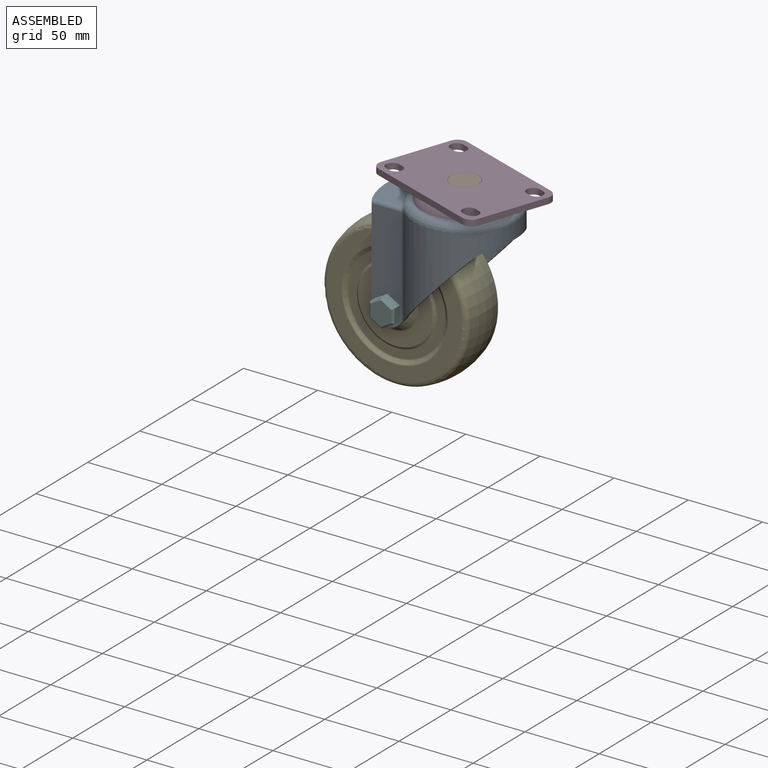
[diagram: assembled view]
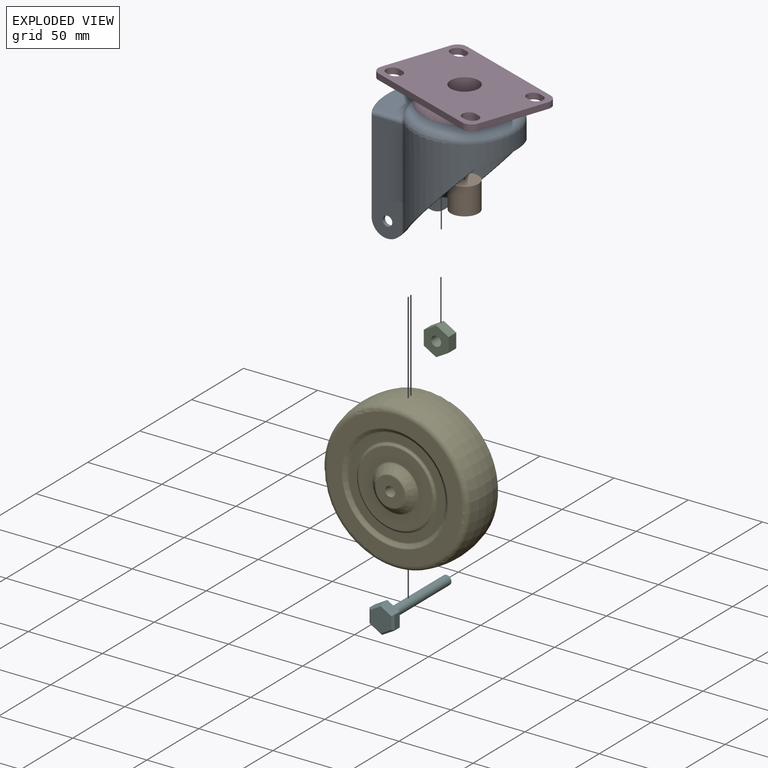
[diagram: exploded view]
GUIDED TOUR — MATED ASSEMBLY (Onshape document 0f3d1a0b3eb51d20e7fdcd5b, AutoMate assembly 0f3d1a0b3eb51d20e7fdcd5b_7a0eaa7c8137d7f687737c3b_ab210383d18e0be0b75b1769_default)

This assembly has 6 components, labeled P0..P5 below (a component is one placed occurrence of a part; the same part can appear more than once), held together by 5 mates. A mate is a constraint between two components; its type names the relative motion it leaves free:
  CYLINDRICAL — leaves both rotation about and translation along the listed axis free,
  FASTENED — locks the two components together rigidly (no relative motion),
  REVOLUTE — leaves rotation about the listed axis free (a hinge).
Axis/direction vectors are unit vectors and 'through' points are millimeter coordinates, both in the assembly's world frame.

MATES
  1. FASTENED "Fastened 2": P2 <-> P0, direction (0.000, -1.000, 0.000) through (-33.50, 5.09, -38.47) mm
  2. CYLINDRICAL "Cylindrical 1": P4 <-> P0, axis (0.000, -1.000, 0.000) through (-33.50, -39.19, -38.47) mm
  3. FASTENED "Fastened 3": P0 <-> P1, direction (0.000, 0.000, -1.000) through (2.14, -18.41, 23.25) mm
  4. REVOLUTE "Revolute 1": P3 <-> P1, axis (0.000, 0.000, 1.000) through (2.14, -18.41, 41.28) mm
  5. FASTENED "Fastened 1": P0 <-> P5, direction (0.000, -1.000, 0.000) through (-33.50, -41.90, -38.47) mm

ASSEMBLY ORDER
  1. P1 — the base component [order heuristic]
  2. P3 — core [order heuristic]
  3. P0 [order verified]
  4. P4 [order verified]
  5. P5 [order verified]
  6. P2 [order verified]
Order-tag legend:
  [order verified] — this step's position reverses a verified removal order: the component was checked to insert without passing through the ones already placed.
  [order heuristic] — the first 2 components form the assembly's core: parts whose collision-free extraction could not be verified, listed in mate-graph order.

Of the 6 components, 0 carry the full construction recipe — the FeatureScript program that regenerates the part's solid from scratch; the rest are supplied as boundary geometry only.
Each toured component is shown spotlighted twice — in the assembled view, then in the exploded view, where a leader line traces a displaced component back to its assembled socket (saturated green if recipe-attached, orange if geometry-only; every other component desaturated gray) — followed by its recipe or geometry summary and the mates that hold it.
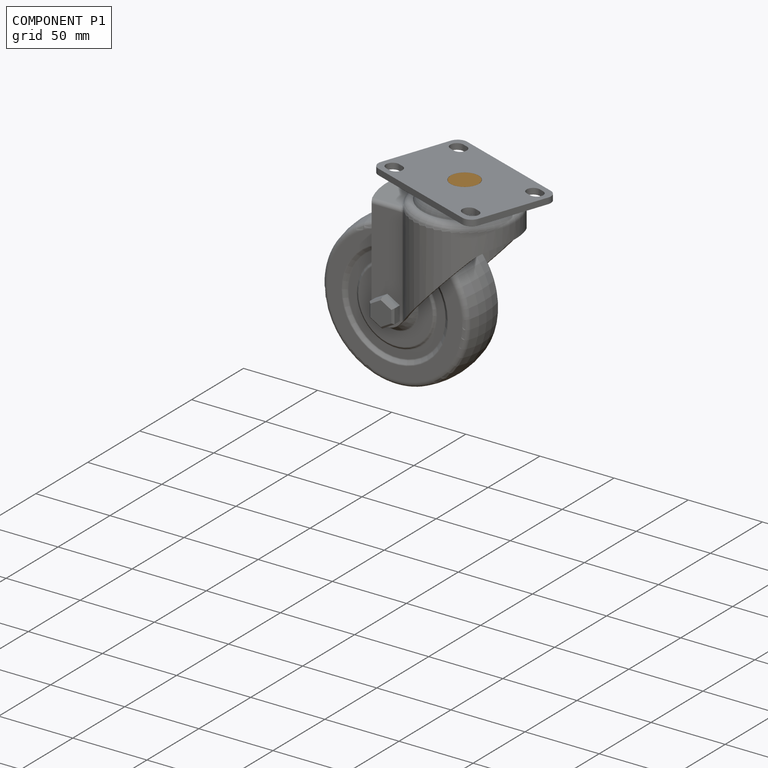
[diagram: component P1 — assembled]
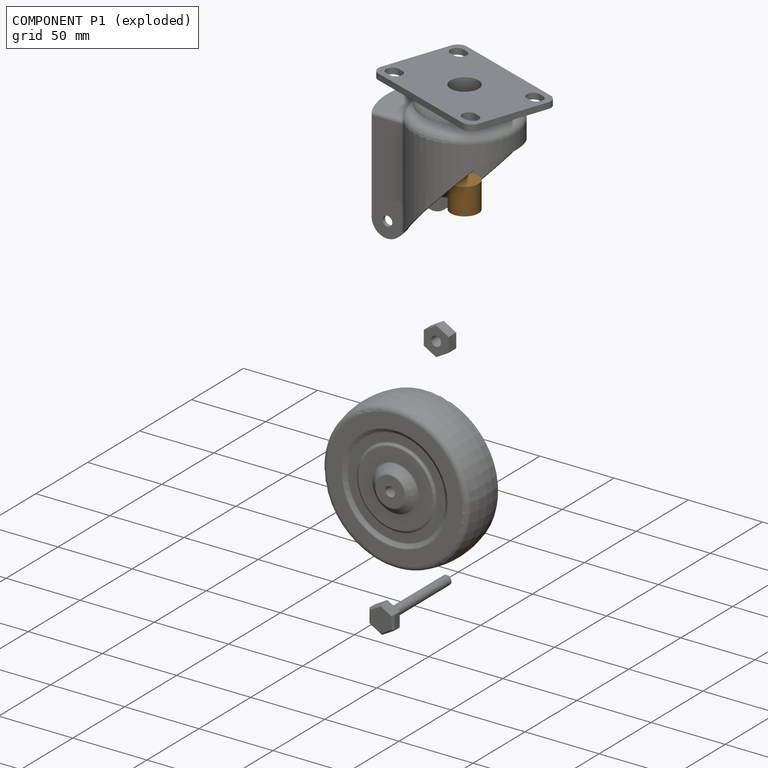
[diagram: component P1 — exploded]
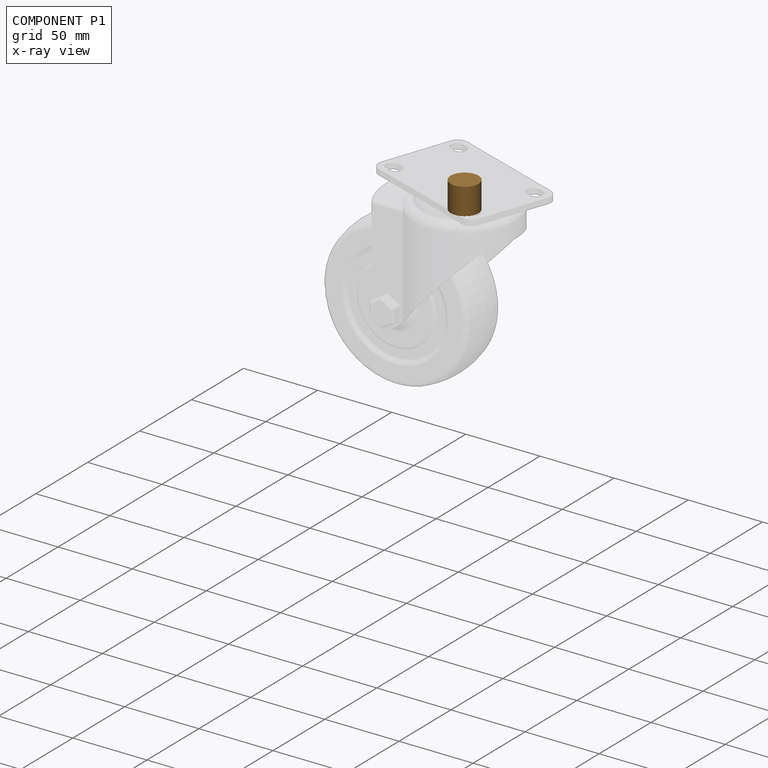
[diagram: component P1 — x-ray view]
COMPONENT P1 — geometry summary (no construction recipe available for this part):
  bounding box: 18.8 x 18.8 x 18.0 mm
  B-rep topology: 1 solid, 3 faces, 8 edges
  volume: 5004 mm^3 (79% of its bounding box)
  symmetry: 2-fold rotationally symmetric about the x axis; 2-fold rotationally symmetric about the y axis; revolution-symmetric about the z axis through its bounding-box center; mirror-symmetric across its x mid-plane, y mid-plane, z mid-plane
Held by: FASTENED mate "Fastened 3" to P0; REVOLUTE mate "Revolute 1" to P3.
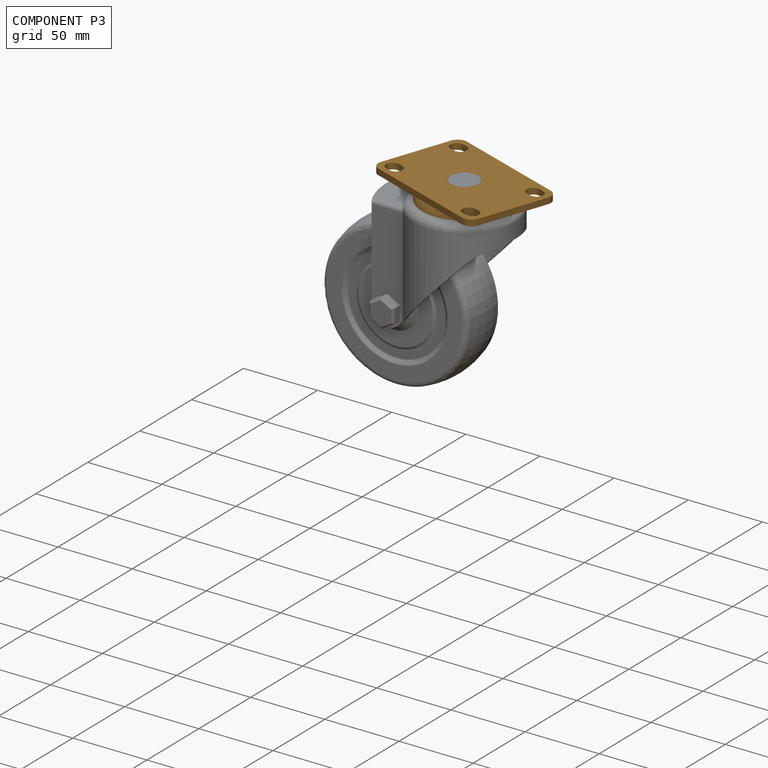
[diagram: component P3 — assembled]
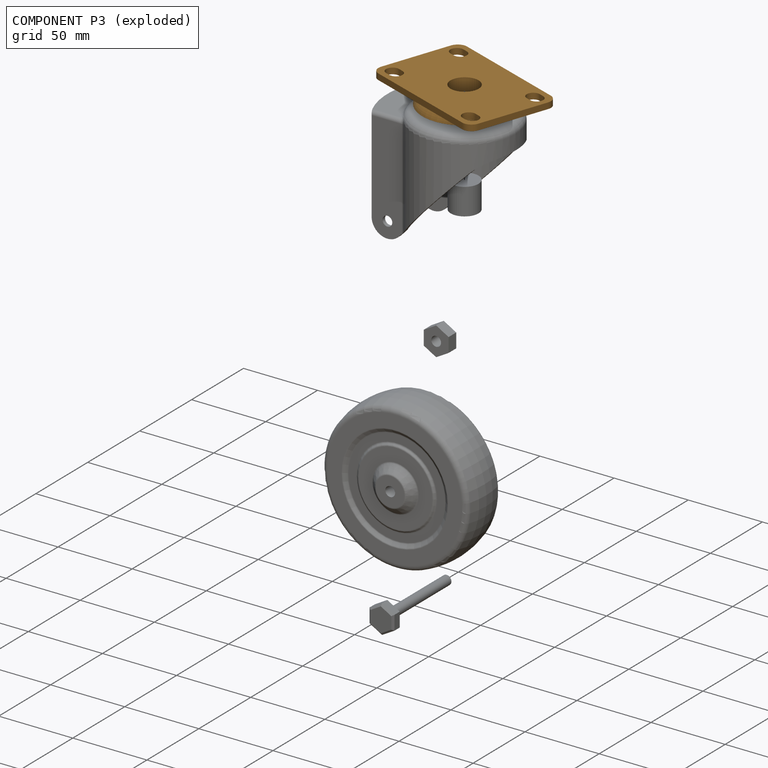
[diagram: component P3 — exploded]
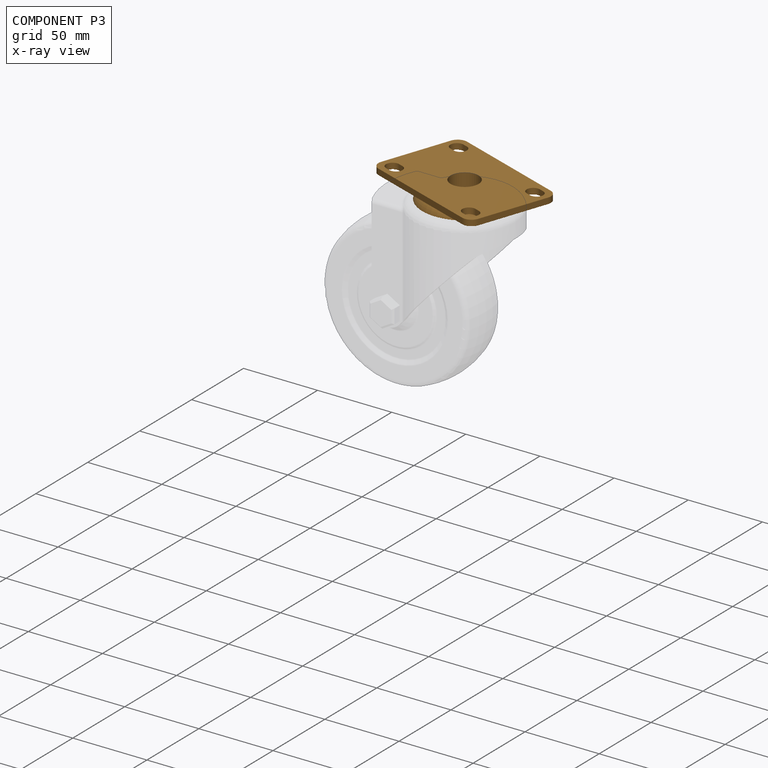
[diagram: component P3 — x-ray view]
COMPONENT P3 — geometry summary (no construction recipe available for this part):
  bounding box: 91.8 x 62.6 x 14.2 mm
  B-rep topology: 1 solid, 29 faces, 156 edges
  volume: 33906 mm^3 (41% of its bounding box)
  symmetry: 2-fold rotationally symmetric about the z axis; mirror-symmetric across its x mid-plane, y mid-plane
Held by: REVOLUTE mate "Revolute 1" to P1.
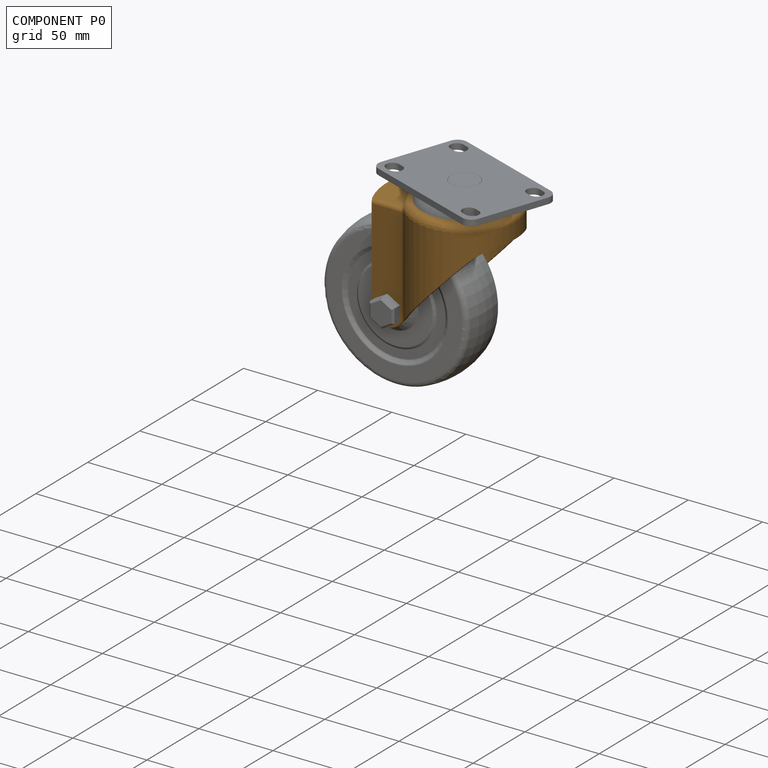
[diagram: component P0 — assembled]
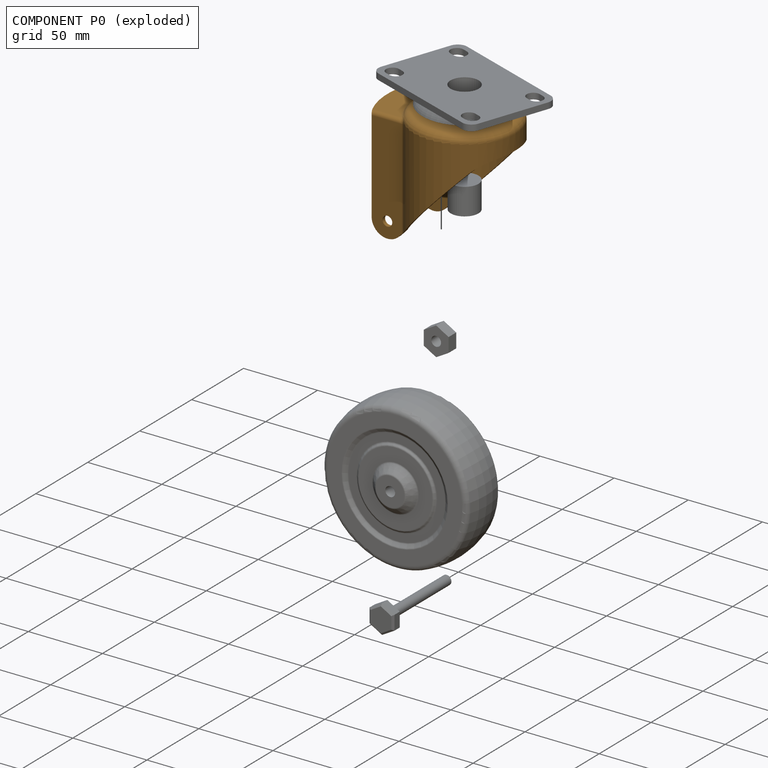
[diagram: component P0 — exploded]
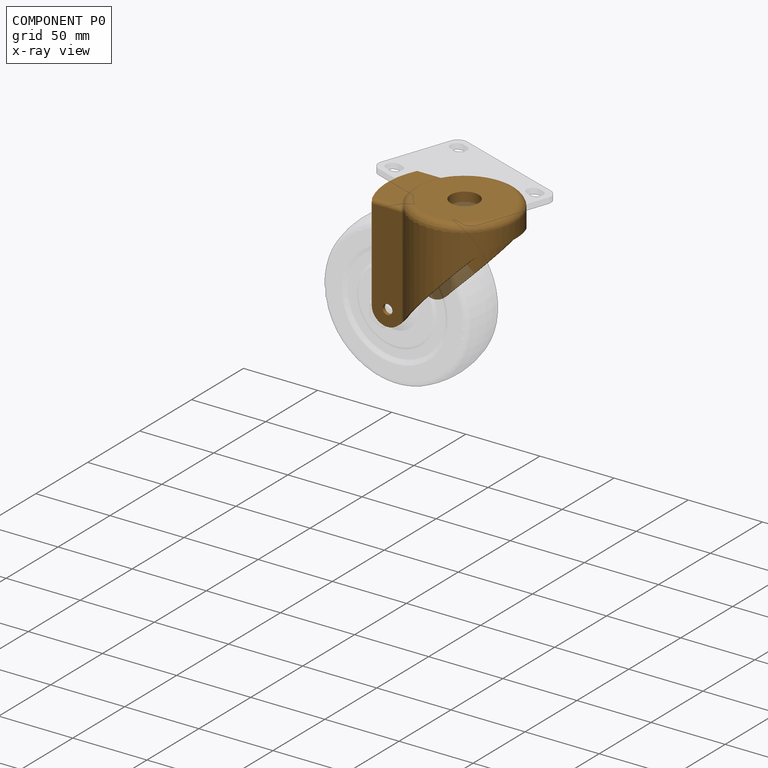
[diagram: component P0 — x-ray view]
COMPONENT P0 — geometry summary (no construction recipe available for this part):
  bounding box: 89.3 x 78.9 x 74.4 mm
  B-rep topology: 1 solid, 32 faces, 162 edges
  volume: 42675 mm^3 (8% of its bounding box)
  symmetry: mirror-symmetric across its y mid-plane
Held by: FASTENED mate "Fastened 2" to P2; CYLINDRICAL mate "Cylindrical 1" to P4; FASTENED mate "Fastened 3" to P1; FASTENED mate "Fastened 1" to P5.
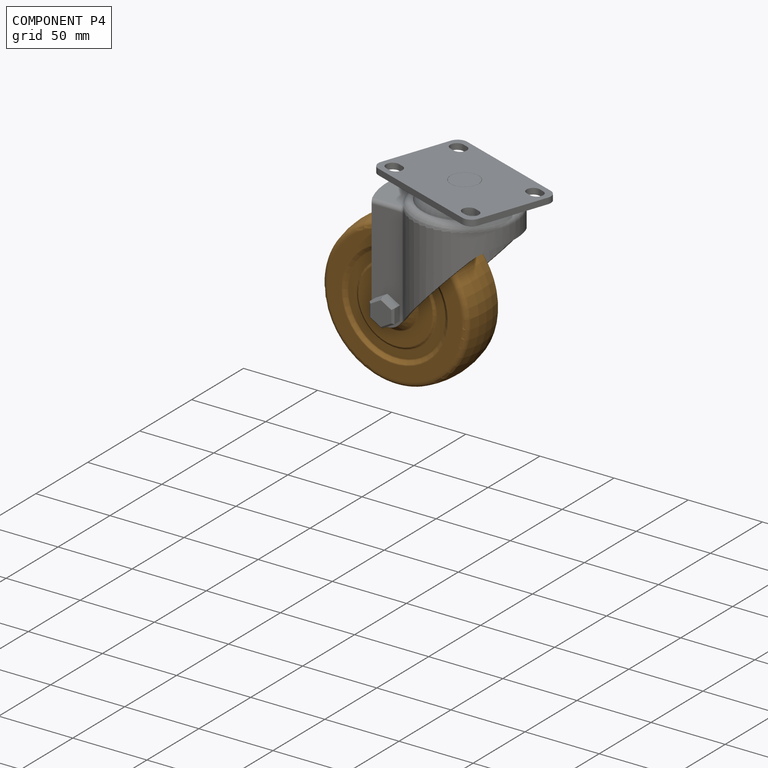
[diagram: component P4 — assembled]
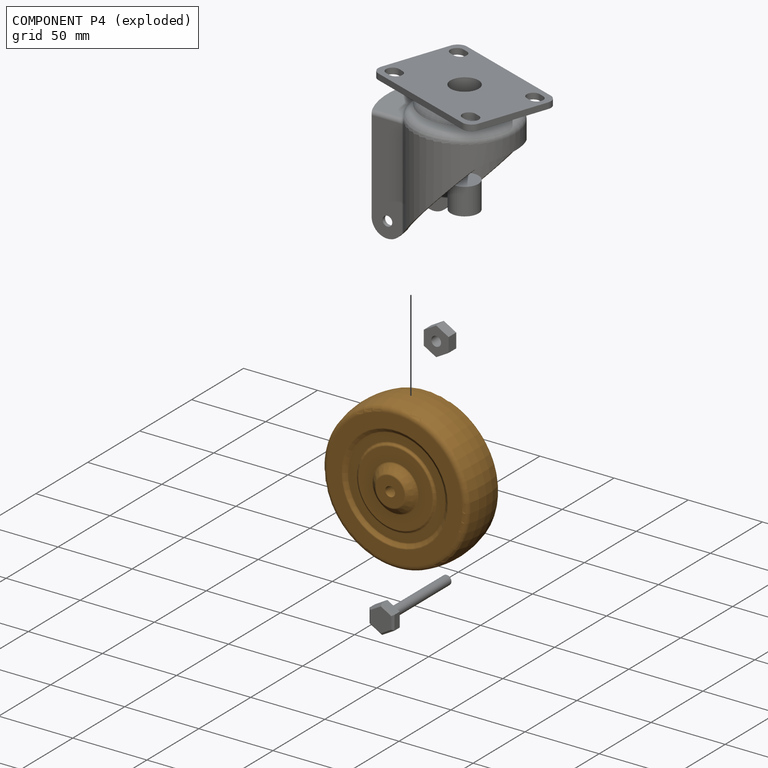
[diagram: component P4 — exploded]
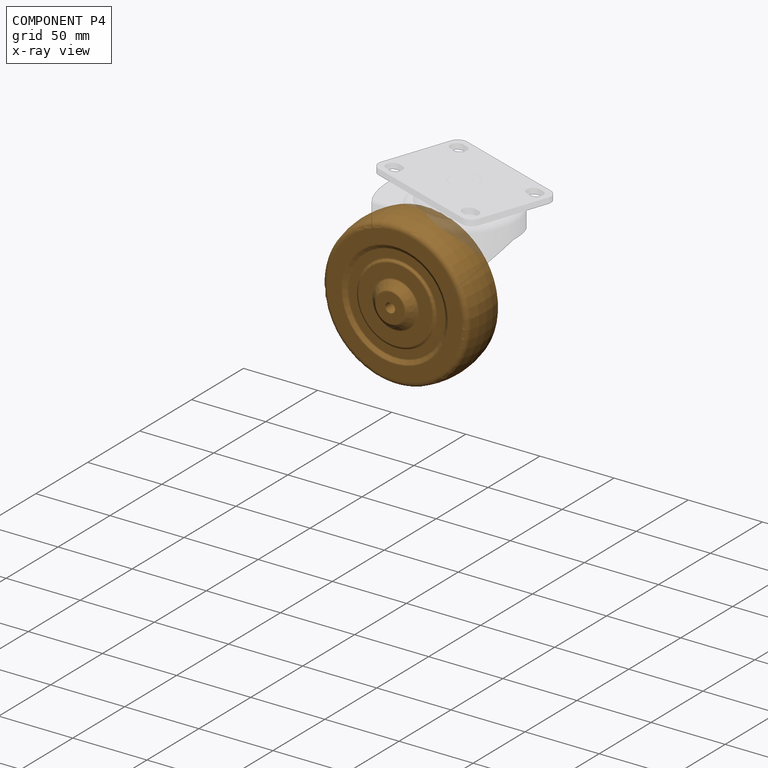
[diagram: component P4 — x-ray view]
COMPONENT P4 — geometry summary (no construction recipe available for this part):
  bounding box: 106.6 x 106.6 x 40.6 mm
  B-rep topology: 1 solid, 30 faces, 128 edges
  volume: 243257 mm^3 (53% of its bounding box)
  symmetry: revolution-symmetric about the x axis through its bounding-box center; 2-fold rotationally symmetric about the y axis; 2-fold rotationally symmetric about the z axis; mirror-symmetric across its x mid-plane, y mid-plane, z mid-plane
Held by: CYLINDRICAL mate "Cylindrical 1" to P0.
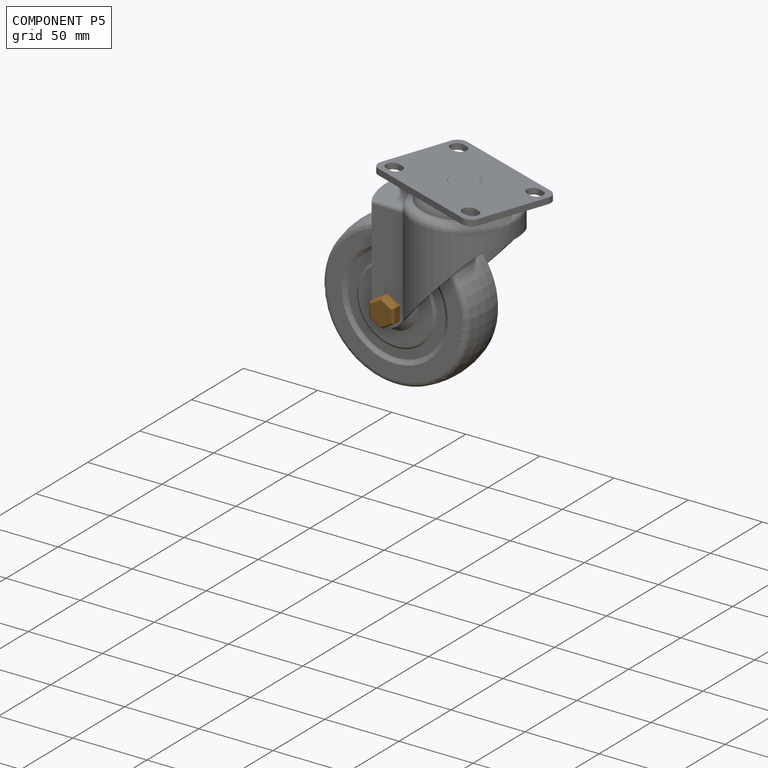
[diagram: component P5 — assembled]
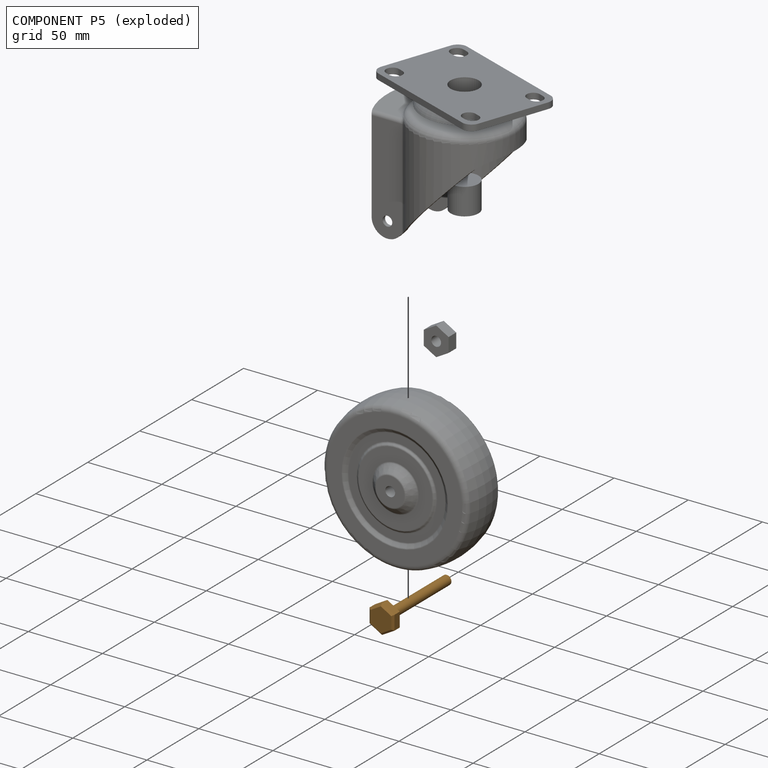
[diagram: component P5 — exploded]
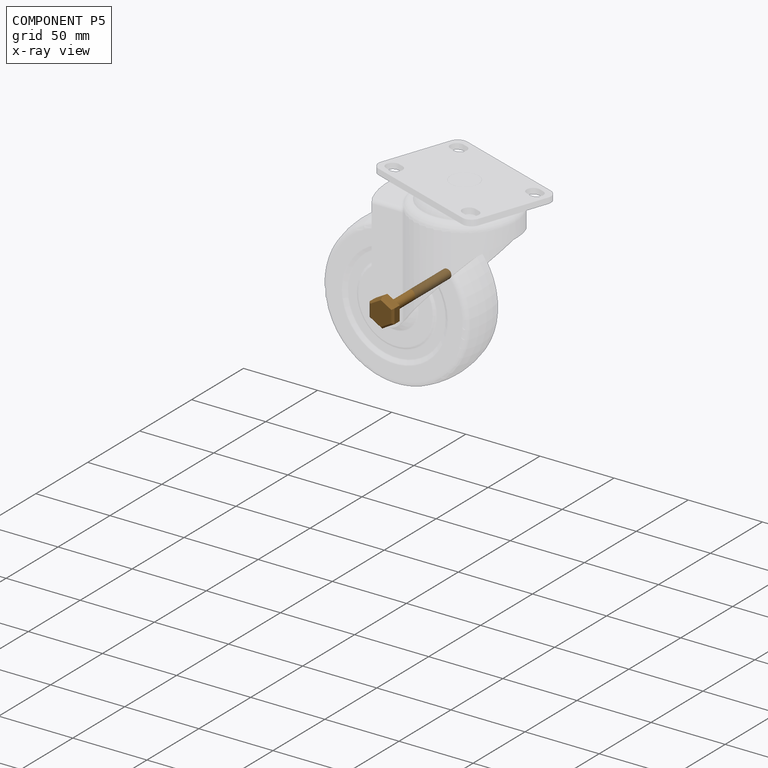
[diagram: component P5 — x-ray view]
COMPONENT P5 — geometry summary (no construction recipe available for this part):
  bounding box: 63.5 x 19.4 x 16.8 mm
  B-rep topology: 1 solid, 16 faces, 66 edges
  volume: 3311 mm^3 (16% of its bounding box)
  symmetry: 6-fold rotationally symmetric about the y axis; mirror-symmetric across its x mid-plane, z mid-plane
Held by: FASTENED mate "Fastened 1" to P0.
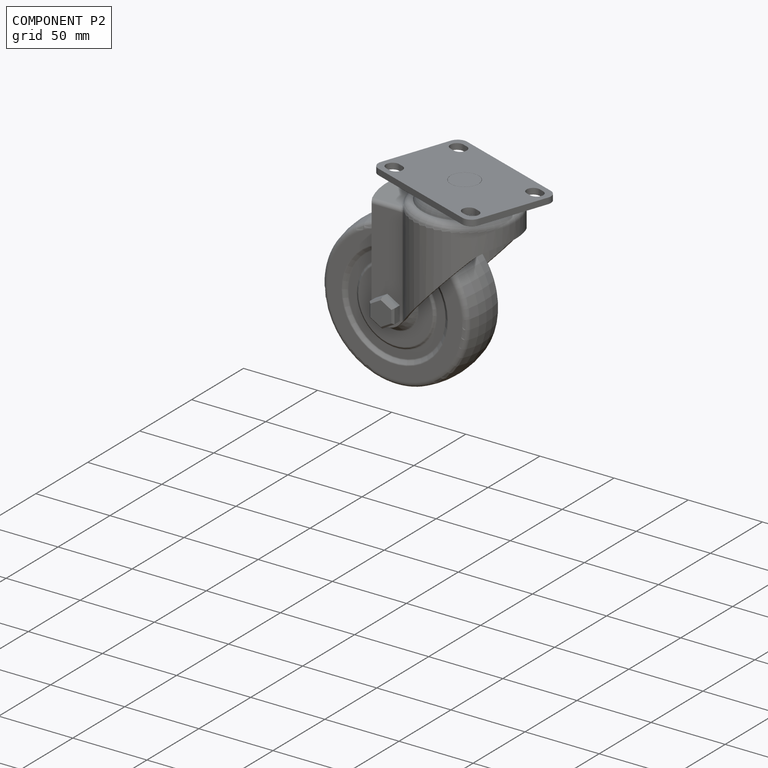
[diagram: component P2 — assembled]
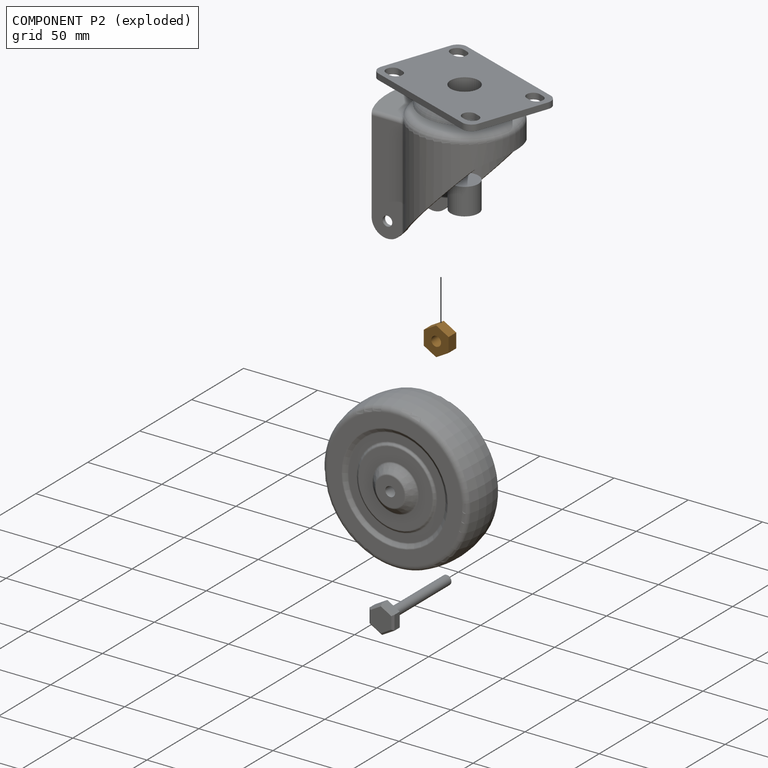
[diagram: component P2 — exploded]
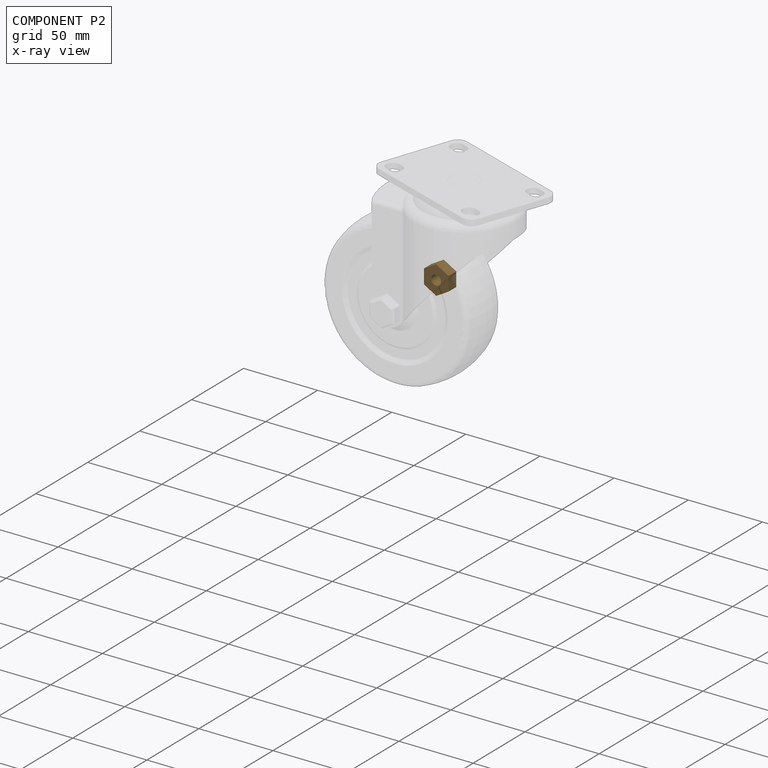
[diagram: component P2 — x-ray view]
COMPONENT P2 — geometry summary (no construction recipe available for this part):
  bounding box: 19.4 x 16.8 x 8.6 mm
  B-rep topology: 1 solid, 15 faces, 66 edges
  volume: 1762 mm^3 (63% of its bounding box)
  symmetry: 6-fold rotationally symmetric about the y axis; mirror-symmetric across its x mid-plane, z mid-plane
Held by: FASTENED mate "Fastened 2" to P0.
PROVENANCE & LICENSES
Assembly (occurrences, transforms, mates, per-part STEP geometry): AutoMate dataset, Zenodo record 7776208, CC0.
Construction recipes: CADFS (HuggingFace VladPyatov/CADFS, CC-BY-4.0, layered over the ABC dataset), FeatureScript reconstruction programs keyed by ABC model id.
Join: ABC meta listings map ABC model id -> Onshape documentId; within a shared document, parts are matched by geometric signature (bounding-box dims + volume at 0.1% relative tolerance, exact B-rep face/solid counts).
Verification: no recipe attachments in this assembly (6 components, all geometry-only).
Renders: orthographic iso camera (az 35 / el 25); the floor grid conveys scale (grid pitch printed in each image; no ruler). In the exploded view each component is displaced by its stored offset vector: the offsets alone carry the explosion direction (mate normal/axis signs are not orientation cues and do not encode it), and separation distances are assigned per mate-chain, not proportionally to assembly-order depth.
